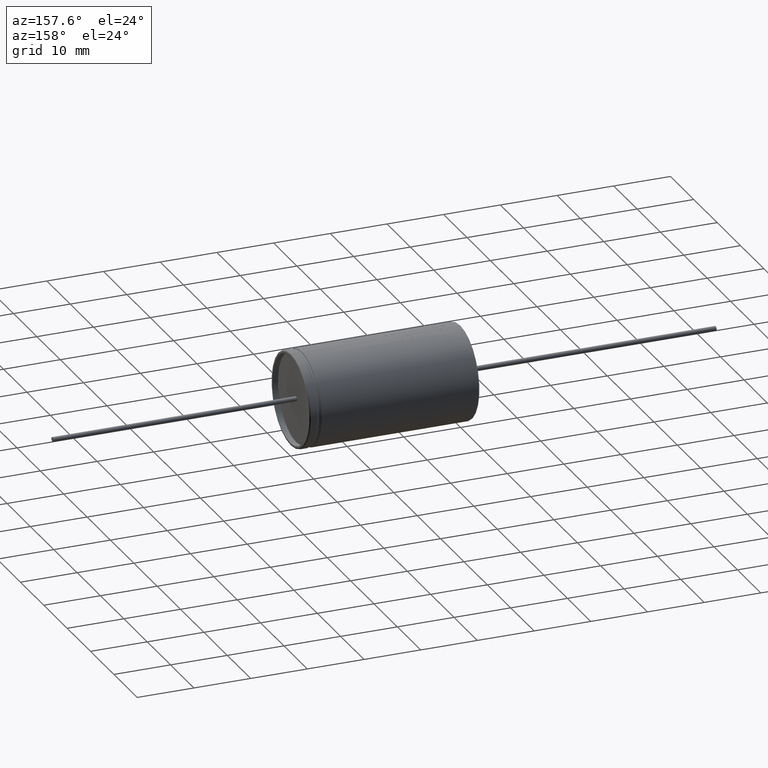
[diagram: clean part render]
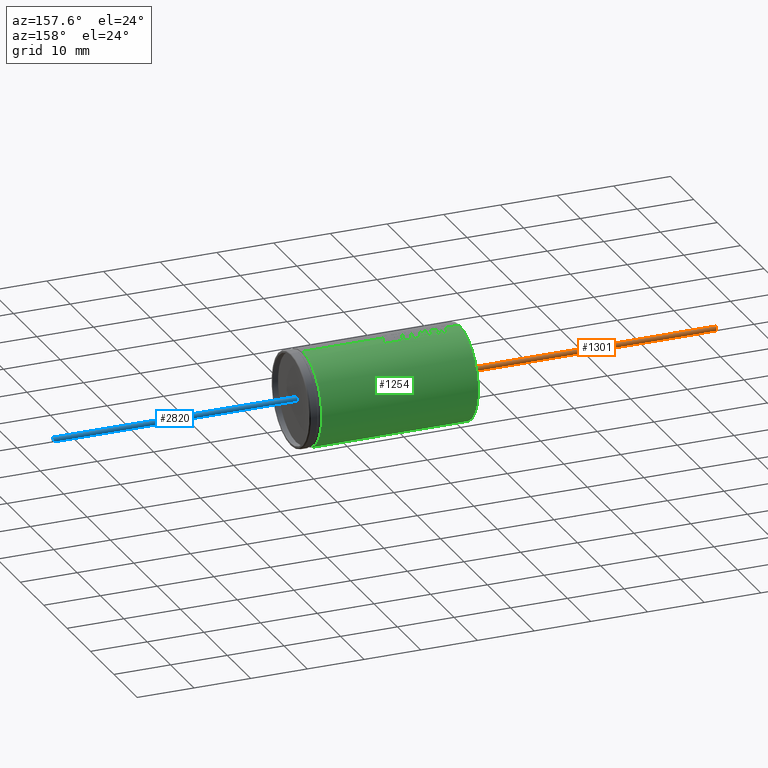
[diagram: same view with three faces highlighted in distinct colors, each labeled with its STEP entity id]
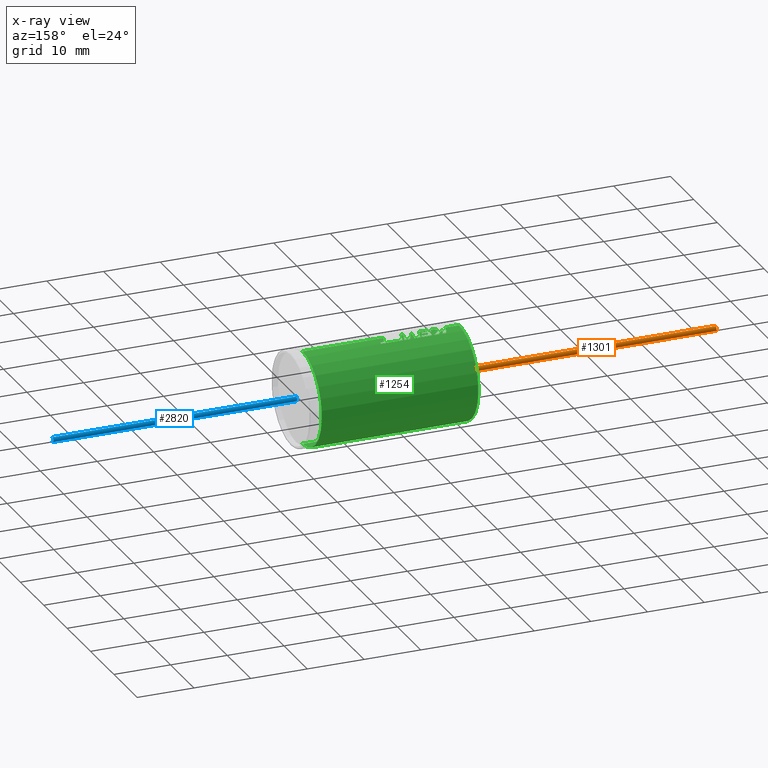
[diagram: x-ray of the same camera — body ghosted, the three highlighted faces saturated]
A machine part, auxiliary view with three faces highlighted in distinct colors.
The next image is the same camera in x-ray (body ghosted, the three faces saturated) — at least one of them is partly hidden behind the body in this view.
Their STEP definitions:

[orange] entity #1301 — the highlighted cylindrical surface (edge-blend (fillet) strip) has radius 0.415 mm, axis along (1, -0, -0).
#93 = AXIS2_PLACEMENT_3D ( 'NONE', #3540, #3602, #2488 ) ;
#199 = VERTEX_POINT ( 'NONE', #3716 ) ;
#297 = EDGE_LOOP ( 'NONE', ( #4238, #3440, #1445, #2345 ) ) ;
#396 = CARTESIAN_POINT ( 'NONE',  ( -45.00000000000000000, 0.0000000000000000000, -0.4150000000000000400 ) ) ;
#405 = CARTESIAN_POINT ( 'NONE',  ( -45.00000000000000000, 5.082284216461515600E-017, 0.4150000000000000400 ) ) ;
#631 = VERTEX_POINT ( 'NONE', #396 ) ;
#1073 = CIRCLE ( 'NONE', #2848, 0.4150000000000000400 ) ;
#1205 = CARTESIAN_POINT ( 'NONE',  ( -45.00000000000000000, 0.0000000000000000000, -0.4150000000000000400 ) ) ;
#1253 = AXIS2_PLACEMENT_3D ( 'NONE', #3806, #4176, #1970 ) ;
#1301 = ADVANCED_FACE ( 'NONE', ( #3013 ), #3233, .T. ) ;
#1348 = DIRECTION ( 'NONE',  ( 0.0000000000000000000, 0.0000000000000000000, 1.000000000000000000 ) ) ;
#1445 = ORIENTED_EDGE ( 'NONE', *, *, #1857, .T. ) ;
#1704 = EDGE_CURVE ( 'NONE', #2115, #631, #1073, .T. ) ;
#1809 = CARTESIAN_POINT ( 'NONE',  ( 0.0000000000000000000, 0.0000000000000000000, -0.4150000000000000400 ) ) ;
#1835 = LINE ( 'NONE', #1205, #2188 ) ;
#1857 = EDGE_CURVE ( 'NONE', #199, #3347, #4145, .T. ) ;
#1895 = EDGE_CURVE ( 'NONE', #2115, #199, #3519, .T. ) ;
#1956 = DIRECTION ( 'NONE',  ( 1.000000000000000000, -0.0000000000000000000, -0.0000000000000000000 ) ) ;
#1970 = DIRECTION ( 'NONE',  ( 0.0000000000000000000, 0.0000000000000000000, -1.000000000000000000 ) ) ;
#2115 = VERTEX_POINT ( 'NONE', #405 ) ;
#2188 = VECTOR ( 'NONE', #1956, 1000.000000000000000 ) ;
#2345 = ORIENTED_EDGE ( 'NONE', *, *, #4456, .F. ) ;
#2436 = CARTESIAN_POINT ( 'NONE',  ( -45.00000000000000000, 0.0000000000000000000, 0.0000000000000000000 ) ) ;
#2488 = DIRECTION ( 'NONE',  ( 0.0000000000000000000, 0.0000000000000000000, -1.000000000000000000 ) ) ;
#2520 = VECTOR ( 'NONE', #3183, 1000.000000000000000 ) ;
#2848 = AXIS2_PLACEMENT_3D ( 'NONE', #2436, #3936, #1348 ) ;
#3013 = FACE_OUTER_BOUND ( 'NONE', #297, .T. ) ;
#3183 = DIRECTION ( 'NONE',  ( 1.000000000000000000, -0.0000000000000000000, -0.0000000000000000000 ) ) ;
#3233 = CYLINDRICAL_SURFACE ( 'NONE', #93, 0.4150000000000000400 ) ;
#3347 = VERTEX_POINT ( 'NONE', #1809 ) ;
#3440 = ORIENTED_EDGE ( 'NONE', *, *, #1895, .T. ) ;
#3519 = LINE ( 'NONE', #4320, #2520 ) ;
#3540 = CARTESIAN_POINT ( 'NONE',  ( -45.00000000000000000, 0.0000000000000000000, 0.0000000000000000000 ) ) ;
#3602 = DIRECTION ( 'NONE',  ( 1.000000000000000000, -0.0000000000000000000, -0.0000000000000000000 ) ) ;
#3716 = CARTESIAN_POINT ( 'NONE',  ( 0.0000000000000000000, 5.082284216461515600E-017, 0.4150000000000000400 ) ) ;
#3806 = CARTESIAN_POINT ( 'NONE',  ( 0.0000000000000000000, 0.0000000000000000000, 0.0000000000000000000 ) ) ;
#3936 = DIRECTION ( 'NONE',  ( -1.000000000000000000, 0.0000000000000000000, 0.0000000000000000000 ) ) ;
#4145 = CIRCLE ( 'NONE', #1253, 0.4150000000000000400 ) ;
#4176 = DIRECTION ( 'NONE',  ( -1.000000000000000000, -0.0000000000000000000, -0.0000000000000000000 ) ) ;
#4238 = ORIENTED_EDGE ( 'NONE', *, *, #1704, .F. ) ;
#4320 = CARTESIAN_POINT ( 'NONE',  ( -45.00000000000000000, 5.082284216461515600E-017, 0.4150000000000000400 ) ) ;
#4456 = EDGE_CURVE ( 'NONE', #631, #3347, #1835, .T. ) ;

[blue] entity #2820 — the highlighted cylindrical surface (edge-blend (fillet) strip) has radius 0.415 mm, axis along (-1, -0, -0).
#97 = DIRECTION ( 'NONE',  ( -1.000000000000000000, -0.0000000000000000000, -0.0000000000000000000 ) ) ;
#192 = LINE ( 'NONE', #1091, #1242 ) ;
#248 = AXIS2_PLACEMENT_3D ( 'NONE', #885, #4178, #4191 ) ;
#658 = CIRCLE ( 'NONE', #248, 0.4150000000000000400 ) ;
#677 = ORIENTED_EDGE ( 'NONE', *, *, #2298, .T. ) ;
#800 = CARTESIAN_POINT ( 'NONE',  ( 72.00000000000000000, 5.082284216461516300E-017, -0.4150000000000000400 ) ) ;
#842 = VERTEX_POINT ( 'NONE', #1435 ) ;
#885 = CARTESIAN_POINT ( 'NONE',  ( 28.99999999999999600, 0.0000000000000000000, 0.0000000000000000000 ) ) ;
#1091 = CARTESIAN_POINT ( 'NONE',  ( 72.00000000000000000, 5.082284216461516300E-017, -0.4150000000000000400 ) ) ;
#1117 = EDGE_CURVE ( 'NONE', #842, #1877, #4741, .T. ) ;
#1222 = CYLINDRICAL_SURFACE ( 'NONE', #3574, 0.4150000000000000400 ) ;
#1242 = VECTOR ( 'NONE', #97, 1000.000000000000000 ) ;
#1290 = CARTESIAN_POINT ( 'NONE',  ( 72.00000000000000000, 0.0000000000000000000, 0.4150000000000000400 ) ) ;
#1435 = CARTESIAN_POINT ( 'NONE',  ( 72.00000000000000000, 0.0000000000000000000, 0.4150000000000000400 ) ) ;
#1443 = EDGE_CURVE ( 'NONE', #3516, #1520, #192, .T. ) ;
#1520 = VERTEX_POINT ( 'NONE', #4500 ) ;
#1563 = ORIENTED_EDGE ( 'NONE', *, *, #1443, .T. ) ;
#1575 = ORIENTED_EDGE ( 'NONE', *, *, #4692, .F. ) ;
#1609 = CARTESIAN_POINT ( 'NONE',  ( 72.00000000000000000, 0.0000000000000000000, 0.0000000000000000000 ) ) ;
#1781 = FACE_OUTER_BOUND ( 'NONE', #2407, .T. ) ;
#1877 = VERTEX_POINT ( 'NONE', #4562 ) ;
#2298 = EDGE_CURVE ( 'NONE', #1520, #1877, #658, .T. ) ;
#2407 = EDGE_LOOP ( 'NONE', ( #1575, #1563, #677, #3567 ) ) ;
#2749 = DIRECTION ( 'NONE',  ( 0.0000000000000000000, 0.0000000000000000000, -1.000000000000000000 ) ) ;
#2767 = DIRECTION ( 'NONE',  ( 1.000000000000000000, 0.0000000000000000000, 0.0000000000000000000 ) ) ;
#2820 = ADVANCED_FACE ( 'NONE', ( #1781 ), #1222, .T. ) ;
#2889 = VECTOR ( 'NONE', #3504, 1000.000000000000000 ) ;
#2911 = AXIS2_PLACEMENT_3D ( 'NONE', #1609, #2767, #2749 ) ;
#3259 = DIRECTION ( 'NONE',  ( -1.000000000000000000, -0.0000000000000000000, -0.0000000000000000000 ) ) ;
#3271 = DIRECTION ( 'NONE',  ( 0.0000000000000000000, 0.0000000000000000000, 1.000000000000000000 ) ) ;
#3345 = CIRCLE ( 'NONE', #2911, 0.4150000000000000400 ) ;
#3504 = DIRECTION ( 'NONE',  ( -1.000000000000000000, -0.0000000000000000000, -0.0000000000000000000 ) ) ;
#3516 = VERTEX_POINT ( 'NONE', #800 ) ;
#3567 = ORIENTED_EDGE ( 'NONE', *, *, #1117, .F. ) ;
#3574 = AXIS2_PLACEMENT_3D ( 'NONE', #3993, #3259, #3271 ) ;
#3993 = CARTESIAN_POINT ( 'NONE',  ( 72.00000000000000000, 0.0000000000000000000, 0.0000000000000000000 ) ) ;
#4178 = DIRECTION ( 'NONE',  ( 1.000000000000000000, 0.0000000000000000000, 0.0000000000000000000 ) ) ;
#4191 = DIRECTION ( 'NONE',  ( 0.0000000000000000000, 0.0000000000000000000, -1.000000000000000000 ) ) ;
#4500 = CARTESIAN_POINT ( 'NONE',  ( 28.99999999999999600, 5.082284216461516300E-017, -0.4150000000000000400 ) ) ;
#4562 = CARTESIAN_POINT ( 'NONE',  ( 28.99999999999999600, 0.0000000000000000000, 0.4150000000000000400 ) ) ;
#4692 = EDGE_CURVE ( 'NONE', #3516, #842, #3345, .T. ) ;
#4741 = LINE ( 'NONE', #1290, #2889 ) ;

[green] entity #1254 — the highlighted cylindrical surface (partial cylindrical patch) has radius 8.25 mm, axis along (-1, -0, -0).
#9 = ORIENTED_EDGE ( 'NONE', *, *, #3822, .T. ) ;
#27 = CARTESIAN_POINT ( 'NONE',  ( 5.934970038181256200, -1.385521385122157100E-010, 8.249999730655343200 ) ) ;
#32 = CARTESIAN_POINT ( 'NONE',  ( 3.834710919933242300, 1.716041819126857800, 8.069553920447386700 ) ) ;
#35 = DIRECTION ( 'NONE',  ( -1.000000000000000000, -0.0000000000000000000, -0.0000000000000000000 ) ) ;
#36 = B_SPLINE_CURVE_WITH_KNOTS ( 'NONE', 3,
 ( #2390, #215, #903, #1284 ),
 .UNSPECIFIED., .F., .F.,
 ( 4, 4 ),
 ( 0.5259696603913501800, 1.000000000000000000 ),
 .UNSPECIFIED. ) ;
#108 = VECTOR ( 'NONE', #2012, 1000.000000000000000 ) ;
#115 = CARTESIAN_POINT ( 'NONE',  ( 4.987050802476361800, 1.355480103031526000, 8.146229656094673600 ) ) ;
#163 = CARTESIAN_POINT ( 'NONE',  ( 0.2500000000000002200, 1.010333609296566500E-015, -8.250000000000000000 ) ) ;
#175 = LINE ( 'NONE', #2812, #3157 ) ;
#215 = CARTESIAN_POINT ( 'NONE',  ( 4.406096499835182800, 0.2075967667300441800, 8.249987562828490400 ) ) ;
#218 = CARTESIAN_POINT ( 'NONE',  ( 30.00000000000000000, 0.0000000000000000000, 8.250000000000000000 ) ) ;
#221 = CARTESIAN_POINT ( 'NONE',  ( 7.079009485606798400, 0.3705789615260921500, 8.241672841921975100 ) ) ;
#223 = CARTESIAN_POINT ( 'NONE',  ( 6.168214336758511600, 0.8166831533094163200, 8.209477975310036900 ) ) ;
#233 = LINE ( 'NONE', #4138, #3903 ) ;
#268 = CARTESIAN_POINT ( 'NONE',  ( 14.67142780739489500, 1.256503071083905400, 8.153753738760860500 ) ) ;
#272 = CARTESIAN_POINT ( 'NONE',  ( 27.87500000000000000, 0.0000000000000000000, 0.0000000000000000000 ) ) ;
#283 = EDGE_CURVE ( 'NONE', #3668, #2752, #233, .T. ) ;
#290 = VERTEX_POINT ( 'NONE', #4540 ) ;
#294 = ORIENTED_EDGE ( 'NONE', *, *, #3326, .F. ) ;
#361 = ORIENTED_EDGE ( 'NONE', *, *, #968, .F. ) ;
#376 = VECTOR ( 'NONE', #4474, 1000.000000000000000 ) ;
#377 = CARTESIAN_POINT ( 'NONE',  ( 7.276896014838174100, -3.201756541768916400E-008, 8.249994539681205600 ) ) ;
#383 = CARTESIAN_POINT ( 'NONE',  ( 8.711187493720018400, 0.0000000000000000000, 8.250000000000000000 ) ) ;
#415 = EDGE_CURVE ( 'NONE', #3232, #3240, #175, .T. ) ;
#426 = CARTESIAN_POINT ( 'NONE',  ( 7.442529960634629100, 0.5762396458524794400, 8.249941756382876100 ) ) ;
#451 = ORIENTED_EDGE ( 'NONE', *, *, #3355, .F. ) ;
#453 = CARTESIAN_POINT ( 'NONE',  ( 5.970177960848776200, 0.1235678609333908700, 8.249999243292053900 ) ) ;
#467 = EDGE_CURVE ( 'NONE', #1013, #3064, #4433, .T. ) ;
#470 = ORIENTED_EDGE ( 'NONE', *, *, #3152, .F. ) ;
#474 = EDGE_CURVE ( 'NONE', #867, #3232, #3117, .T. ) ;
#488 = CARTESIAN_POINT ( 'NONE',  ( 4.233994023214334500, 0.6222043947074678000, 8.226503612787556800 ) ) ;
#491 = DIRECTION ( 'NONE',  ( 1.000000000000000000, 0.0000000000000000000, 0.0000000000000000000 ) ) ;
#498 = EDGE_LOOP ( 'NONE', ( #1753, #899, #9, #2882, #4264, #2336, #3974, #1236, #1479, #4366, #4319, #1510, #4080, #1303, #4444, #1022, #3606, #3662, #1829, #4513, #580, #294, #451, #470, #1617, #3387, #4241, #361, #4005, #3856, #2805, #4567, #683, #857, #1074, #1385 ) ) ;
#513 = VERTEX_POINT ( 'NONE', #696 ) ;
#521 = EDGE_CURVE ( 'NONE', #3043, #905, #1683, .T. ) ;
#578 = CARTESIAN_POINT ( 'NONE',  ( 8.711187493720018400, 0.0000000000000000000, 8.250000000000000000 ) ) ;
#580 = ORIENTED_EDGE ( 'NONE', *, *, #1537, .F. ) ;
#583 = VERTEX_POINT ( 'NONE', #4724 ) ;
#678 = VERTEX_POINT ( 'NONE', #2550 ) ;
#683 = ORIENTED_EDGE ( 'NONE', *, *, #4631, .F. ) ;
#686 = DIRECTION ( 'NONE',  ( 0.0000000000000000000, 0.0000000000000000000, -1.000000000000000000 ) ) ;
#696 = CARTESIAN_POINT ( 'NONE',  ( 6.168214336758511600, 0.8166831533094163200, 8.209477975310036900 ) ) ;
#710 = EDGE_CURVE ( 'NONE', #290, #2761, #2906, .T. ) ;
#724 = B_SPLINE_CURVE_WITH_KNOTS ( 'NONE', 3,
 ( #847, #834, #2683, #1927 ),
 .UNSPECIFIED., .F., .F.,
 ( 4, 4 ),
 ( 0.0000000000000000000, 1.000000000000000000 ),
 .UNSPECIFIED. ) ;
#733 = VECTOR ( 'NONE', #3640, 1000.000000000000000 ) ;
#737 = CARTESIAN_POINT ( 'NONE',  ( 13.88806568310180900, 0.8409353901281148000, 8.217795921039337900 ) ) ;
#785 = CARTESIAN_POINT ( 'NONE',  ( 14.00893674567404700, 1.256555051638677000, 8.153745728326418500 ) ) ;
#790 = CARTESIAN_POINT ( 'NONE',  ( 3.834710919933242300, 1.716041819126857600, 8.069553920447386700 ) ) ;
#802 = CARTESIAN_POINT ( 'NONE',  ( 6.005385870962672200, 0.2471356813192877600, 8.247223351322654500 ) ) ;
#808 = B_SPLINE_CURVE_WITH_KNOTS ( 'NONE', 3,
 ( #223, #2852, #1339, #3148 ),
 .UNSPECIFIED., .F., .F.,
 ( 4, 4 ),
 ( 0.0000000000000000000, 1.000000000000000000 ),
 .UNSPECIFIED. ) ;
#819 = CARTESIAN_POINT ( 'NONE',  ( 4.610525116011991100, 0.9897788962639330100, 8.198702437340998000 ) ) ;
#826 = EDGE_CURVE ( 'NONE', #4664, #3924, #3353, .T. ) ;
#834 = CARTESIAN_POINT ( 'NONE',  ( 4.224496868614068900, 1.379612581241588500, 8.141097731552632100 ) ) ;
#847 = CARTESIAN_POINT ( 'NONE',  ( 4.567281747041178600, 1.716041819126779200, 8.069553920447404500 ) ) ;
#848 = CARTESIAN_POINT ( 'NONE',  ( 0.2500000000000002200, 0.0000000000000000000, 8.250000000000000000 ) ) ;
#857 = ORIENTED_EDGE ( 'NONE', *, *, #710, .F. ) ;
#862 = AXIS2_PLACEMENT_3D ( 'NONE', #2905, #3683, #686 ) ;
#864 = CARTESIAN_POINT ( 'NONE',  ( 7.773778274860265300, 1.716041819126901600, 8.069553920447376100 ) ) ;
#867 = VERTEX_POINT ( 'NONE', #1814 ) ;
#887 = CARTESIAN_POINT ( 'NONE',  ( 12.71760500823164000, 1.716041819126901100, 8.069553920447376100 ) ) ;
#899 = ORIENTED_EDGE ( 'NONE', *, *, #3949, .T. ) ;
#903 = CARTESIAN_POINT ( 'NONE',  ( 4.320046259390405700, 0.4151937629486255900, 8.242160680588670000 ) ) ;
#905 = VERTEX_POINT ( 'NONE', #4096 ) ;
#911 = VERTEX_POINT ( 'NONE', #383 ) ;
#965 = VECTOR ( 'NONE', #2297, 1000.000000000000000 ) ;
#967 = DIRECTION ( 'NONE',  ( 0.0000000000000000000, 0.0000000000000000000, 1.000000000000000000 ) ) ;
#968 = EDGE_CURVE ( 'NONE', #3240, #1013, #1665, .T. ) ;
#980 = CARTESIAN_POINT ( 'NONE',  ( 4.233994023214334500, 0.6222043947074678000, 8.226503612787556800 ) ) ;
#1005 = LINE ( 'NONE', #2174, #4552 ) ;
#1013 = VERTEX_POINT ( 'NONE', #1622 ) ;
#1022 = ORIENTED_EDGE ( 'NONE', *, *, #2290, .F. ) ;
#1025 = CARTESIAN_POINT ( 'NONE',  ( 5.413207137151064600, 0.5762022559492279200, 8.249810413538039500 ) ) ;
#1031 = EDGE_CURVE ( 'NONE', #911, #1637, #3001, .T. ) ;
#1036 = CARTESIAN_POINT ( 'NONE',  ( 14.00893674567404700, 1.256555051638677000, 8.153745728326418500 ) ) ;
#1046 = DIRECTION ( 'NONE',  ( -1.000000000000000000, 0.0000000000000000000, 0.0000000000000000000 ) ) ;
#1074 = ORIENTED_EDGE ( 'NONE', *, *, #3453, .F. ) ;
#1106 = VECTOR ( 'NONE', #35, 1000.000000000000000 ) ;
#1120 = B_SPLINE_CURVE_WITH_KNOTS ( 'NONE', 3,
 ( #2616, #2652, #2219, #790 ),
 .UNSPECIFIED., .F., .F.,
 ( 4, 4 ),
 ( 0.0000000000000000000, 1.000000000000000000 ),
 .UNSPECIFIED. ) ;
#1152 = CARTESIAN_POINT ( 'NONE',  ( 27.87500000000000000, 0.0000000000000000000, 8.250000000000000000 ) ) ;
#1161 = CARTESIAN_POINT ( 'NONE',  ( 7.079009485606798400, 0.3705789615260921500, 8.241672841921975100 ) ) ;
#1179 = CARTESIAN_POINT ( 'NONE',  ( 5.247396802830460900, -2.044873033689142300E-007, 8.249952697241880600 ) ) ;
#1198 = CARTESIAN_POINT ( 'NONE',  ( 10.46410912941893500, 1.152307237275194800, 8.189435654541039600 ) ) ;
#1203 = LINE ( 'NONE', #3809, #3080 ) ;
#1216 = CARTESIAN_POINT ( 'NONE',  ( 7.206777136342192400, 0.8166831533094162100, 8.209477975310036900 ) ) ;
#1236 = ORIENTED_EDGE ( 'NONE', *, *, #3089, .F. ) ;
#1254 = ADVANCED_FACE ( 'NONE', ( #4041 ), #2524, .T. ) ;
#1255 = CARTESIAN_POINT ( 'NONE',  ( 5.744835927141256300, 1.716041819126901600, 8.069553920447376100 ) ) ;
#1273 = VERTEX_POINT ( 'NONE', #3572 ) ;
#1275 = CARTESIAN_POINT ( 'NONE',  ( 8.804242170828764800, 1.716041819126901100, 8.069553920447376100 ) ) ;
#1278 = VERTEX_POINT ( 'NONE', #4330 ) ;
#1284 = CARTESIAN_POINT ( 'NONE',  ( 4.233994023214334500, 0.6222043947074678000, 8.226503612787556800 ) ) ;
#1294 = CARTESIAN_POINT ( 'NONE',  ( 10.75554824900644500, 1.152307244342784200, 8.189435653038071200 ) ) ;
#1303 = ORIENTED_EDGE ( 'NONE', *, *, #3970, .F. ) ;
#1334 = DIRECTION ( 'NONE',  ( -1.000000000000000000, 0.0000000000000000000, 0.0000000000000000000 ) ) ;
#1339 = CARTESIAN_POINT ( 'NONE',  ( 6.255521484788124200, 1.114846509495841100, 8.175703249378489800 ) ) ;
#1350 = CARTESIAN_POINT ( 'NONE',  ( 10.13280839674770900, -2.041794404020853200E-007, 8.249952697900440100 ) ) ;
#1351 = LINE ( 'NONE', #4586, #965 ) ;
#1368 = CARTESIAN_POINT ( 'NONE',  ( 2.814545442960981100, 0.5762022547578918900, 8.249810417411605800 ) ) ;
#1385 = ORIENTED_EDGE ( 'NONE', *, *, #521, .F. ) ;
#1410 = B_SPLINE_CURVE_WITH_KNOTS ( 'NONE', 3,
 ( #3039, #1535, #3399, #3100 ),
 .UNSPECIFIED., .F., .F.,
 ( 4, 4 ),
 ( 0.0000000000000000000, 1.000000000000000000 ),
 .UNSPECIFIED. ) ;
#1414 = CARTESIAN_POINT ( 'NONE',  ( 2.648952361300336300, -2.040274387893383400E-007, 8.249952698225598600 ) ) ;
#1458 = VECTOR ( 'NONE', #1334, 1000.000000000000000 ) ;
#1479 = ORIENTED_EDGE ( 'NONE', *, *, #1625, .F. ) ;
#1510 = ORIENTED_EDGE ( 'NONE', *, *, #2473, .F. ) ;
#1535 = CARTESIAN_POINT ( 'NONE',  ( 7.445218885256347900, 1.414814728082874000, 8.129229326531961100 ) ) ;
#1537 = EDGE_CURVE ( 'NONE', #583, #3668, #2264, .T. ) ;
#1557 = VECTOR ( 'NONE', #3342, 1000.000000000000000 ) ;
#1559 = CARTESIAN_POINT ( 'NONE',  ( 9.568548044013470000, 1.716041819126901800, 8.069553920447377800 ) ) ;
#1561 = CARTESIAN_POINT ( 'NONE',  ( 10.62981125708290600, 1.716041819126901100, 8.069553920447376100 ) ) ;
#1571 = EDGE_CURVE ( 'NONE', #2752, #4025, #4629, .T. ) ;
#1617 = ORIENTED_EDGE ( 'NONE', *, *, #1031, .F. ) ;
#1622 = CARTESIAN_POINT ( 'NONE',  ( 10.62981125708290600, 1.716041819126901100, 8.069553920447376100 ) ) ;
#1625 = EDGE_CURVE ( 'NONE', #2740, #1278, #1351, .T. ) ;
#1637 = VERTEX_POINT ( 'NONE', #2788 ) ;
#1664 = LINE ( 'NONE', #4507, #2547 ) ;
#1665 = B_SPLINE_CURVE_WITH_KNOTS ( 'NONE', 3,
 ( #4158, #3424, #1198, #1561 ),
 .UNSPECIFIED., .F., .F.,
 ( 4, 4 ),
 ( 0.2855727037505534400, 1.000000000000000000 ),
 .UNSPECIFIED. ) ;
#1683 = LINE ( 'NONE', #218, #733 ) ;
#1698 = VERTEX_POINT ( 'NONE', #980 ) ;
#1723 = LINE ( 'NONE', #2593, #376 ) ;
#1738 = AXIS2_PLACEMENT_3D ( 'NONE', #272, #4652, #3919 ) ;
#1753 = ORIENTED_EDGE ( 'NONE', *, *, #3713, .T. ) ;
#1759 = EDGE_CURVE ( 'NONE', #4025, #513, #3282, .T. ) ;
#1770 = B_SPLINE_CURVE_WITH_KNOTS ( 'NONE', 3,
 ( #2743, #3855, #4625, #578 ),
 .UNSPECIFIED., .F., .F.,
 ( 4, 4 ),
 ( 0.0000000000000000000, 1.000000000000000000 ),
 .UNSPECIFIED. ) ;
#1796 = CARTESIAN_POINT ( 'NONE',  ( 6.299175075160468900, 1.263099001026195800, 8.152734566610556400 ) ) ;
#1798 = CARTESIAN_POINT ( 'NONE',  ( 14.45059745348794600, 1.256520397944007600, 8.153751068671278200 ) ) ;
#1814 = CARTESIAN_POINT ( 'NONE',  ( 10.92132397682915500, 1.716041819126901600, 8.069553920447376100 ) ) ;
#1829 = ORIENTED_EDGE ( 'NONE', *, *, #1571, .F. ) ;
#1859 = CARTESIAN_POINT ( 'NONE',  ( 7.206777136342192400, 0.8166831533094162100, 8.209477975310036900 ) ) ;
#1927 = CARTESIAN_POINT ( 'NONE',  ( 3.538930942111225200, 0.6959824562365948300, 8.220590515322538000 ) ) ;
#1988 = CARTESIAN_POINT ( 'NONE',  ( 5.363581895274021100, 1.716041819126901600, 8.069553920447376100 ) ) ;
#1998 = CARTESIAN_POINT ( 'NONE',  ( 8.742207433812652100, 0.5762530305975402900, 8.250000000000000000 ) ) ;
#2012 = DIRECTION ( 'NONE',  ( -1.000000000000000000, -0.0000000000000000000, -0.0000000000000000000 ) ) ;
#2021 = EDGE_CURVE ( 'NONE', #513, #2818, #808, .T. ) ;
#2067 = VERTEX_POINT ( 'NONE', #377 ) ;
#2087 = LINE ( 'NONE', #2571, #1106 ) ;
#2106 = CARTESIAN_POINT ( 'NONE',  ( 30.00000000000000000, 0.0000000000000000000, 0.0000000000000000000 ) ) ;
#2120 = CARTESIAN_POINT ( 'NONE',  ( 10.42410035572401800, -2.043352068930923100E-007, 8.249952697567245300 ) ) ;
#2136 = LINE ( 'NONE', #3428, #3875 ) ;
#2153 = LINE ( 'NONE', #4056, #1557 ) ;
#2159 = VECTOR ( 'NONE', #3992, 1000.000000000000000 ) ;
#2174 = CARTESIAN_POINT ( 'NONE',  ( 12.71760500823164000, 1.716041819126901100, 8.069553920447376100 ) ) ;
#2190 = CARTESIAN_POINT ( 'NONE',  ( 7.608135821554920900, 1.152372857070316900, 8.189421700075437000 ) ) ;
#2219 = CARTESIAN_POINT ( 'NONE',  ( 3.736116924177773400, 1.379611548757039500, 8.141097951117021800 ) ) ;
#2232 = CARTESIAN_POINT ( 'NONE',  ( 13.64635630766555600, -6.013810065349459900E-008, 8.249973829178140200 ) ) ;
#2243 = CARTESIAN_POINT ( 'NONE',  ( 7.401614342766212200, 1.263099001026195800, 8.152734566610556400 ) ) ;
#2262 = CARTESIAN_POINT ( 'NONE',  ( 6.040593832920104800, 0.3705789615260921500, 8.241672841921975100 ) ) ;
#2264 = B_SPLINE_CURVE_WITH_KNOTS ( 'NONE', 3,
 ( #27, #453, #802, #2262 ),
 .UNSPECIFIED., .F., .F.,
 ( 4, 4 ),
 ( 0.3835878451457138100, 1.000000000000000000 ),
 .UNSPECIFIED. ) ;
#2269 = CARTESIAN_POINT ( 'NONE',  ( 14.76094776673561900, 1.563697938034647800, 8.101950812942259700 ) ) ;
#2290 = EDGE_CURVE ( 'NONE', #2818, #2567, #1203, .T. ) ;
#2291 = VERTEX_POINT ( 'NONE', #1255 ) ;
#2297 = DIRECTION ( 'NONE',  ( -1.000000000000000000, -1.530381784529530600E-013, 3.485567053732738600E-014 ) ) ;
#2315 = EDGE_CURVE ( 'NONE', #4182, #4667, #2433, .T. ) ;
#2323 = LINE ( 'NONE', #3655, #2159 ) ;
#2336 = ORIENTED_EDGE ( 'NONE', *, *, #826, .F. ) ;
#2339 = CARTESIAN_POINT ( 'NONE',  ( 30.00000000000000000, 0.0000000000000000000, 8.250000000000000000 ) ) ;
#2379 = CARTESIAN_POINT ( 'NONE',  ( 8.773222230736131200, 1.152392740068954400, 8.189417471829678200 ) ) ;
#2390 = CARTESIAN_POINT ( 'NONE',  ( 4.492146628738978200, 3.316005184415132800E-009, 8.249993342761177600 ) ) ;
#2412 = CARTESIAN_POINT ( 'NONE',  ( 10.42410035572401800, -2.043352068930923100E-007, 8.249952697567245300 ) ) ;
#2422 = CARTESIAN_POINT ( 'NONE',  ( 6.040593832920104800, 0.3705789615260921500, 8.241672841921975100 ) ) ;
#2433 = LINE ( 'NONE', #2339, #108 ) ;
#2441 = DIRECTION ( 'NONE',  ( -1.000000000000000000, -0.0000000000000000000, -0.0000000000000000000 ) ) ;
#2473 = EDGE_CURVE ( 'NONE', #3095, #678, #2087, .T. ) ;
#2484 = B_SPLINE_CURVE_WITH_KNOTS ( 'NONE', 3,
 ( #3589, #4753, #1368, #1414 ),
 .UNSPECIFIED., .F., .F.,
 ( 4, 4 ),
 ( 0.0000000000000000000, 0.7144272970986205200 ),
 .UNSPECIFIED. ) ;
#2524 = CYLINDRICAL_SURFACE ( 'NONE', #4617, 8.250000000000000000 ) ;
#2547 = VECTOR ( 'NONE', #4604, 1000.000000000000000 ) ;
#2550 = CARTESIAN_POINT ( 'NONE',  ( 4.492146628738978200, 3.316005184415132800E-009, 8.249993342761177600 ) ) ;
#2567 = VERTEX_POINT ( 'NONE', #2243 ) ;
#2571 = CARTESIAN_POINT ( 'NONE',  ( 30.00000000000000000, 0.0000000000000000000, 8.250000000000000000 ) ) ;
#2593 = CARTESIAN_POINT ( 'NONE',  ( 30.00000000000000000, 1.010333609296566500E-015, -8.250000000000000000 ) ) ;
#2604 = DIRECTION ( 'NONE',  ( -1.000000000000000000, 6.263142257726086000E-014, -1.510707680255538300E-014 ) ) ;
#2616 = CARTESIAN_POINT ( 'NONE',  ( 3.538930942111225200, 0.6959824562365948300, 8.220590515322538000 ) ) ;
#2629 = CARTESIAN_POINT ( 'NONE',  ( 7.121598712930658200, 0.5195349002805299500, 8.234975180154089400 ) ) ;
#2643 = VECTOR ( 'NONE', #2739, 1000.000000000000000 ) ;
#2652 = CARTESIAN_POINT ( 'NONE',  ( 3.637524937866693600, 1.038709640035645700, 8.191574095303208100 ) ) ;
#2667 = CARTESIAN_POINT ( 'NONE',  ( 5.363581895274021100, 1.716041819126901600, 8.069553920447376100 ) ) ;
#2676 = EDGE_CURVE ( 'NONE', #4357, #3693, #1664, .T. ) ;
#2683 = CARTESIAN_POINT ( 'NONE',  ( 3.881715820538330900, 1.038708588226162000, 8.191574184352887800 ) ) ;
#2689 = DIRECTION ( 'NONE',  ( -1.000000000000000000, 0.0000000000000000000, 0.0000000000000000000 ) ) ;
#2739 = DIRECTION ( 'NONE',  ( -1.000000000000000000, 0.0000000000000000000, 0.0000000000000000000 ) ) ;
#2740 = VERTEX_POINT ( 'NONE', #1988 ) ;
#2743 = CARTESIAN_POINT ( 'NONE',  ( 9.568548044013470000, 1.716041819126901800, 8.069553920447377800 ) ) ;
#2752 = VERTEX_POINT ( 'NONE', #221 ) ;
#2761 = VERTEX_POINT ( 'NONE', #268 ) ;
#2763 = B_SPLINE_CURVE_WITH_KNOTS ( 'NONE', 3,
 ( #3772, #4159, #2269, #3745 ),
 .UNSPECIFIED., .F., .F.,
 ( 4, 4 ),
 ( 0.0000000000000000000, 1.000000000000000000 ),
 .UNSPECIFIED. ) ;
#2788 = CARTESIAN_POINT ( 'NONE',  ( 8.804242170828764800, 1.716041819126901100, 8.069553920447376100 ) ) ;
#2805 = ORIENTED_EDGE ( 'NONE', *, *, #2827, .F. ) ;
#2812 = CARTESIAN_POINT ( 'NONE',  ( 30.00000000000000000, 0.0000000000000000000, 8.250000000000000000 ) ) ;
#2818 = VERTEX_POINT ( 'NONE', #1796 ) ;
#2827 = EDGE_CURVE ( 'NONE', #3693, #867, #1005, .T. ) ;
#2852 = CARTESIAN_POINT ( 'NONE',  ( 6.211867927130855400, 0.9659674890202603100, 8.194627091685683600 ) ) ;
#2870 = CARTESIAN_POINT ( 'NONE',  ( 5.578988351998885000, 1.152307251244258500, 8.189435651570429200 ) ) ;
#2882 = ORIENTED_EDGE ( 'NONE', *, *, #2315, .F. ) ;
#2905 = CARTESIAN_POINT ( 'NONE',  ( 0.2500000000000002200, 0.0000000000000000000, 0.0000000000000000000 ) ) ;
#2906 = B_SPLINE_CURVE_WITH_KNOTS ( 'NONE', 3,
 ( #1036, #4351, #1798, #3994 ),
 .UNSPECIFIED., .F., .F.,
 ( 4, 4 ),
 ( 0.0000000000000000000, 1.000000000000000000 ),
 .UNSPECIFIED. ) ;
#2944 = CARTESIAN_POINT ( 'NONE',  ( 5.744835927141256300, 1.716041819126901600, 8.069553920447376100 ) ) ;
#2965 = EDGE_CURVE ( 'NONE', #1273, #4664, #1120, .T. ) ;
#2995 = CARTESIAN_POINT ( 'NONE',  ( 13.76721391241458800, 0.4204770973963254900, 8.249918794746777800 ) ) ;
#3001 = B_SPLINE_CURVE_WITH_KNOTS ( 'NONE', 3,
 ( #3876, #1998, #2379, #1275 ),
 .UNSPECIFIED., .F., .F.,
 ( 4, 4 ),
 ( 0.0000000000000000000, 1.000000000000000000 ),
 .UNSPECIFIED. ) ;
#3039 = CARTESIAN_POINT ( 'NONE',  ( 7.401614342766212200, 1.263099001026195800, 8.152734566610556400 ) ) ;
#3043 = VERTEX_POINT ( 'NONE', #1152 ) ;
#3047 = VERTEX_POINT ( 'NONE', #864 ) ;
#3064 = VERTEX_POINT ( 'NONE', #1559 ) ;
#3077 = VECTOR ( 'NONE', #2604, 1000.000000000000000 ) ;
#3080 = VECTOR ( 'NONE', #3150, 1000.000000000000000 ) ;
#3083 = EDGE_CURVE ( 'NONE', #1698, #2740, #3295, .T. ) ;
#3089 = EDGE_CURVE ( 'NONE', #1278, #1273, #724, .T. ) ;
#3095 = VERTEX_POINT ( 'NONE', #1179 ) ;
#3100 = CARTESIAN_POINT ( 'NONE',  ( 7.532427934271231300, 1.716041819126901100, 8.069553920447376100 ) ) ;
#3117 = B_SPLINE_CURVE_WITH_KNOTS ( 'NONE', 3,
 ( #4646, #1294, #3222, #2412 ),
 .UNSPECIFIED., .F., .F.,
 ( 4, 4 ),
 ( 0.0000000000000000000, 0.7144272953792758500 ),
 .UNSPECIFIED. ) ;
#3119 = VERTEX_POINT ( 'NONE', #4757 ) ;
#3133 = CARTESIAN_POINT ( 'NONE',  ( 7.206777136342192400, 0.8166831533094162100, 8.209477975310036900 ) ) ;
#3148 = CARTESIAN_POINT ( 'NONE',  ( 6.299175075160468900, 1.263099001026195800, 8.152734566610556400 ) ) ;
#3150 = DIRECTION ( 'NONE',  ( 1.000000000000000000, 0.0000000000000000000, 0.0000000000000000000 ) ) ;
#3152 = EDGE_CURVE ( 'NONE', #1637, #3047, #2323, .T. ) ;
#3157 = VECTOR ( 'NONE', #2441, 1000.000000000000000 ) ;
#3222 = CARTESIAN_POINT ( 'NONE',  ( 10.58983885665668000, 0.5762022555551906700, 8.249810414819220800 ) ) ;
#3232 = VERTEX_POINT ( 'NONE', #2120 ) ;
#3235 = EDGE_CURVE ( 'NONE', #3924, #4182, #2484, .T. ) ;
#3240 = VERTEX_POINT ( 'NONE', #1350 ) ;
#3282 = LINE ( 'NONE', #3133, #2643 ) ;
#3295 = B_SPLINE_CURVE_WITH_KNOTS ( 'NONE', 3,
 ( #488, #819, #115, #2667 ),
 .UNSPECIFIED., .F., .F.,
 ( 4, 4 ),
 ( 0.0000000000000000000, 1.000000000000000000 ),
 .UNSPECIFIED. ) ;
#3326 = EDGE_CURVE ( 'NONE', #2067, #583, #2153, .T. ) ;
#3342 = DIRECTION ( 'NONE',  ( -1.000000000000000000, -0.0000000000000000000, -0.0000000000000000000 ) ) ;
#3353 = LINE ( 'NONE', #32, #3077 ) ;
#3355 = EDGE_CURVE ( 'NONE', #3047, #2067, #3859, .T. ) ;
#3365 = CARTESIAN_POINT ( 'NONE',  ( 3.834710919933242300, 1.716041819126857600, 8.069553920447386700 ) ) ;
#3387 = ORIENTED_EDGE ( 'NONE', *, *, #3634, .F. ) ;
#3399 = CARTESIAN_POINT ( 'NONE',  ( 7.488823391781094700, 1.565874015911798800, 8.101488056180773600 ) ) ;
#3424 = CARTESIAN_POINT ( 'NONE',  ( 10.29847331179593300, 0.5762022551516767800, 8.249810416131239800 ) ) ;
#3428 = CARTESIAN_POINT ( 'NONE',  ( 7.532427934271231300, 1.716041819126901100, 8.069553920447376100 ) ) ;
#3453 = EDGE_CURVE ( 'NONE', #905, #290, #4002, .T. ) ;
#3572 = CARTESIAN_POINT ( 'NONE',  ( 3.538930942111225200, 0.6959824562365948300, 8.220590515322538000 ) ) ;
#3589 = CARTESIAN_POINT ( 'NONE',  ( 3.145739718429834600, 1.716041819126901100, 8.069553920447376100 ) ) ;
#3603 = EDGE_CURVE ( 'NONE', #678, #1698, #36, .T. ) ;
#3606 = ORIENTED_EDGE ( 'NONE', *, *, #2021, .F. ) ;
#3612 = CARTESIAN_POINT ( 'NONE',  ( 5.247396802830460900, -2.044873033689142300E-007, 8.249952697241880600 ) ) ;
#3634 = EDGE_CURVE ( 'NONE', #3064, #911, #1770, .T. ) ;
#3640 = DIRECTION ( 'NONE',  ( -1.000000000000000000, -0.0000000000000000000, -0.0000000000000000000 ) ) ;
#3655 = CARTESIAN_POINT ( 'NONE',  ( 8.804242170828764800, 1.716041819126901100, 8.069553920447376100 ) ) ;
#3662 = ORIENTED_EDGE ( 'NONE', *, *, #1759, .F. ) ;
#3668 = VERTEX_POINT ( 'NONE', #2422 ) ;
#3683 = DIRECTION ( 'NONE',  ( 1.000000000000000000, 0.0000000000000000000, 0.0000000000000000000 ) ) ;
#3693 = VERTEX_POINT ( 'NONE', #887 ) ;
#3713 = EDGE_CURVE ( 'NONE', #3043, #3119, #4410, .T. ) ;
#3745 = CARTESIAN_POINT ( 'NONE',  ( 14.80570776592153200, 1.716041819126901100, 8.069553920447376100 ) ) ;
#3772 = CARTESIAN_POINT ( 'NONE',  ( 14.67142780739489500, 1.256503071083905400, 8.153753738760860500 ) ) ;
#3809 = CARTESIAN_POINT ( 'NONE',  ( 6.299175075160468900, 1.263099001026195800, 8.152734566610556400 ) ) ;
#3822 = EDGE_CURVE ( 'NONE', #4142, #4667, #4228, .T. ) ;
#3848 = EDGE_CURVE ( 'NONE', #2291, #3095, #4364, .T. ) ;
#3855 = CARTESIAN_POINT ( 'NONE',  ( 9.282748325010642200, 1.152398511893122600, 8.189416244414664100 ) ) ;
#3856 = ORIENTED_EDGE ( 'NONE', *, *, #474, .F. ) ;
#3859 = B_SPLINE_CURVE_WITH_KNOTS ( 'NONE', 3,
 ( #4106, #2190, #426, #4397 ),
 .UNSPECIFIED., .F., .F.,
 ( 4, 4 ),
 ( 0.0000000000000000000, 0.8822703790323823700 ),
 .UNSPECIFIED. ) ;
#3875 = VECTOR ( 'NONE', #2689, 1000.000000000000000 ) ;
#3876 = CARTESIAN_POINT ( 'NONE',  ( 8.711187493720018400, 0.0000000000000000000, 8.250000000000000000 ) ) ;
#3903 = VECTOR ( 'NONE', #491, 1000.000000000000000 ) ;
#3907 = DIRECTION ( 'NONE',  ( -1.000000000000000000, -0.0000000000000000000, -0.0000000000000000000 ) ) ;
#3919 = DIRECTION ( 'NONE',  ( 0.0000000000000000000, 0.0000000000000000000, -1.000000000000000000 ) ) ;
#3924 = VERTEX_POINT ( 'NONE', #4461 ) ;
#3928 = CARTESIAN_POINT ( 'NONE',  ( 14.80570776592153200, 1.716041819126901100, 8.069553920447376100 ) ) ;
#3949 = EDGE_CURVE ( 'NONE', #3119, #4142, #1723, .T. ) ;
#3970 = EDGE_CURVE ( 'NONE', #4771, #2291, #2136, .T. ) ;
#3974 = ORIENTED_EDGE ( 'NONE', *, *, #2965, .F. ) ;
#3992 = DIRECTION ( 'NONE',  ( -1.000000000000000000, 0.0000000000000000000, 0.0000000000000000000 ) ) ;
#3994 = CARTESIAN_POINT ( 'NONE',  ( 14.67142780739489500, 1.256503071083905400, 8.153753738760860500 ) ) ;
#4002 = B_SPLINE_CURVE_WITH_KNOTS ( 'NONE', 3,
 ( #2232, #2995, #737, #785 ),
 .UNSPECIFIED., .F., .F.,
 ( 4, 4 ),
 ( 0.3539183289281714900, 1.000000000000000000 ),
 .UNSPECIFIED. ) ;
#4003 = EDGE_CURVE ( 'NONE', #2567, #4771, #1410, .T. ) ;
#4005 = ORIENTED_EDGE ( 'NONE', *, *, #415, .F. ) ;
#4025 = VERTEX_POINT ( 'NONE', #1216 ) ;
#4041 = FACE_OUTER_BOUND ( 'NONE', #498, .T. ) ;
#4056 = CARTESIAN_POINT ( 'NONE',  ( 30.00000000000000000, 0.0000000000000000000, 8.250000000000000000 ) ) ;
#4080 = ORIENTED_EDGE ( 'NONE', *, *, #3848, .F. ) ;
#4096 = CARTESIAN_POINT ( 'NONE',  ( 13.64635630766555600, -6.013810065349459900E-008, 8.249973829178140200 ) ) ;
#4106 = CARTESIAN_POINT ( 'NONE',  ( 7.773778274860265300, 1.716041819126901600, 8.069553920447376100 ) ) ;
#4138 = CARTESIAN_POINT ( 'NONE',  ( 6.040593832920104800, 0.3705789615260921500, 8.241672841921975100 ) ) ;
#4142 = VERTEX_POINT ( 'NONE', #163 ) ;
#4158 = CARTESIAN_POINT ( 'NONE',  ( 10.13280839674770900, -2.041794404020853200E-007, 8.249952697900440100 ) ) ;
#4159 = CARTESIAN_POINT ( 'NONE',  ( 14.71618780658080700, 1.410436547739381700, 8.130032408394852100 ) ) ;
#4182 = VERTEX_POINT ( 'NONE', #4634 ) ;
#4228 = CIRCLE ( 'NONE', #862, 8.250000000000000000 ) ;
#4241 = ORIENTED_EDGE ( 'NONE', *, *, #467, .F. ) ;
#4264 = ORIENTED_EDGE ( 'NONE', *, *, #3235, .F. ) ;
#4277 = CARTESIAN_POINT ( 'NONE',  ( 10.62981125708290600, 1.716041819126901100, 8.069553920447376100 ) ) ;
#4319 = ORIENTED_EDGE ( 'NONE', *, *, #3603, .F. ) ;
#4330 = CARTESIAN_POINT ( 'NONE',  ( 4.567281747041178600, 1.716041819126779200, 8.069553920447404500 ) ) ;
#4351 = CARTESIAN_POINT ( 'NONE',  ( 14.22976709958099500, 1.256537724795598200, 8.153748398526461800 ) ) ;
#4357 = VERTEX_POINT ( 'NONE', #3928 ) ;
#4364 = B_SPLINE_CURVE_WITH_KNOTS ( 'NONE', 3,
 ( #2944, #2870, #1025, #3612 ),
 .UNSPECIFIED., .F., .F.,
 ( 4, 4 ),
 ( 0.0000000000000000000, 0.7144272945295489000 ),
 .UNSPECIFIED. ) ;
#4366 = ORIENTED_EDGE ( 'NONE', *, *, #3083, .F. ) ;
#4397 = CARTESIAN_POINT ( 'NONE',  ( 7.276896014838174100, -3.201756541768916400E-008, 8.249994539681205600 ) ) ;
#4410 = CIRCLE ( 'NONE', #1738, 8.250000000000000000 ) ;
#4433 = LINE ( 'NONE', #4277, #1458 ) ;
#4444 = ORIENTED_EDGE ( 'NONE', *, *, #4003, .F. ) ;
#4461 = CARTESIAN_POINT ( 'NONE',  ( 3.145739718429834600, 1.716041819126901100, 8.069553920447376100 ) ) ;
#4474 = DIRECTION ( 'NONE',  ( -1.000000000000000000, -0.0000000000000000000, -0.0000000000000000000 ) ) ;
#4507 = CARTESIAN_POINT ( 'NONE',  ( 14.80570776592153200, 1.716041819126901100, 8.069553920447376100 ) ) ;
#4513 = ORIENTED_EDGE ( 'NONE', *, *, #283, .F. ) ;
#4518 = CARTESIAN_POINT ( 'NONE',  ( 7.164187909018332700, 0.6683090887292205700, 8.224238304687267100 ) ) ;
#4540 = CARTESIAN_POINT ( 'NONE',  ( 14.00893674567404700, 1.256555051638677000, 8.153745728326418500 ) ) ;
#4552 = VECTOR ( 'NONE', #1046, 1000.000000000000000 ) ;
#4567 = ORIENTED_EDGE ( 'NONE', *, *, #2676, .F. ) ;
#4586 = CARTESIAN_POINT ( 'NONE',  ( 5.363581895274021100, 1.716041819126901100, 8.069553920447376100 ) ) ;
#4599 = CARTESIAN_POINT ( 'NONE',  ( 7.532427934271231300, 1.716041819126901100, 8.069553920447376100 ) ) ;
#4604 = DIRECTION ( 'NONE',  ( -1.000000000000000000, 0.0000000000000000000, 0.0000000000000000000 ) ) ;
#4617 = AXIS2_PLACEMENT_3D ( 'NONE', #2106, #3907, #967 ) ;
#4625 = CARTESIAN_POINT ( 'NONE',  ( 8.996987212722846300, 0.5762471297076199300, 8.250000000000000000 ) ) ;
#4629 = B_SPLINE_CURVE_WITH_KNOTS ( 'NONE', 3,
 ( #1161, #2629, #4518, #1859 ),
 .UNSPECIFIED., .F., .F.,
 ( 4, 4 ),
 ( 0.0000000000000000000, 1.000000000000000000 ),
 .UNSPECIFIED. ) ;
#4631 = EDGE_CURVE ( 'NONE', #2761, #4357, #2763, .T. ) ;
#4634 = CARTESIAN_POINT ( 'NONE',  ( 2.648952361300336300, -2.040274387893383400E-007, 8.249952698225598600 ) ) ;
#4646 = CARTESIAN_POINT ( 'NONE',  ( 10.92132397682915500, 1.716041819126901600, 8.069553920447376100 ) ) ;
#4652 = DIRECTION ( 'NONE',  ( -1.000000000000000000, -0.0000000000000000000, -0.0000000000000000000 ) ) ;
#4664 = VERTEX_POINT ( 'NONE', #3365 ) ;
#4667 = VERTEX_POINT ( 'NONE', #848 ) ;
#4724 = CARTESIAN_POINT ( 'NONE',  ( 5.934970038181256200, -1.385521385122157100E-010, 8.249999730655343200 ) ) ;
#4753 = CARTESIAN_POINT ( 'NONE',  ( 2.980109438090423600, 1.152307230378126500, 8.189435656007745500 ) ) ;
#4757 = CARTESIAN_POINT ( 'NONE',  ( 27.87500000000000000, 1.010333609296566500E-015, -8.250000000000000000 ) ) ;
#4771 = VERTEX_POINT ( 'NONE', #4599 ) ;